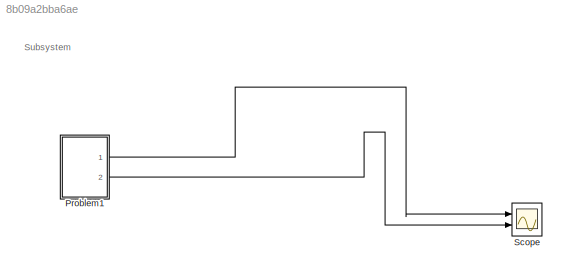
MODEL slx_8b09a2bba6ae
KIND model
CONFIG AbsTol = auto
CONFIG EnableMultiTasking = off
CONFIG FixedStep = auto
CONFIG MaxStep = auto
CONFIG MinStep = auto
CONFIG RelTol = 1e-3
CONFIG SampleTimeConstraint = Unconstrained
CONFIG Solver = VariableStepAuto
CONFIG SolverName = VariableStepAuto
CONFIG StartTime = 0.0
CONFIG StopTime = 100
WORKSPACE source: mxarray member
WORKSPACE F = 1
WORKSPACE b = 50
WORKSPACE k = 100
WORKSPACE k1 = 4
WORKSPACE k12 = 25
WORKSPACE m1 = 100
WORKSPACE m2 = 0.25
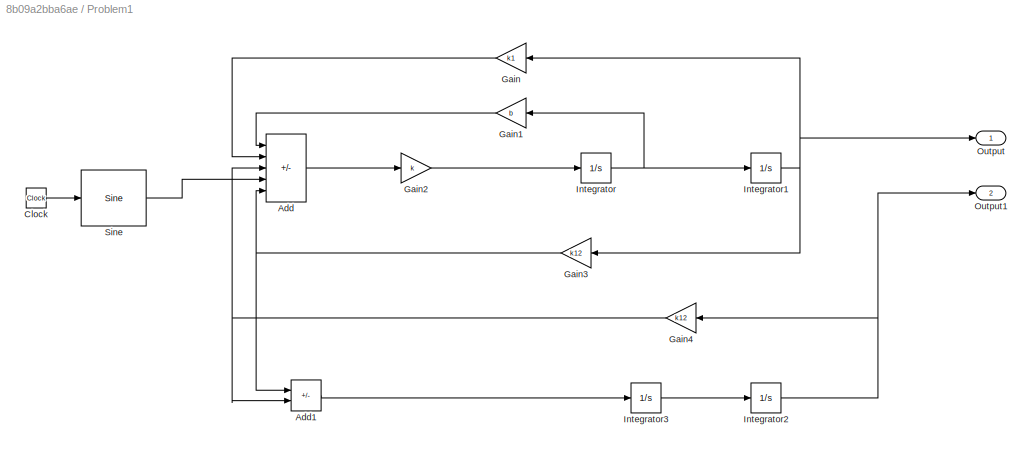
BLOCK [SubSystem] Problem1
  Ports = [0, 2]
  RequestExecContextInheritance = off
BLOCK [Sum] Problem1/Add
  IconShape = rectangular
  Inputs = --++-
  Ports = [5, 1]
BLOCK [Sum] Problem1/Add1
  IconShape = rectangular
  Inputs = +-
  Ports = [2, 1]
BLOCK [Clock] Problem1/Clock
BLOCK [Gain] Problem1/Gain
  Gain = k1
  NameLocation = top
BLOCK [Gain] Problem1/Gain1
  Gain = b
  NameLocation = top
BLOCK [Gain] Problem1/Gain2
  Gain = k
BLOCK [Gain] Problem1/Gain3
  Gain = k12
  NameLocation = top
BLOCK [Gain] Problem1/Gain4
  Gain = k12
  NameLocation = top
BLOCK [Integrator] Problem1/Integrator
  Ports = [1, 1]
BLOCK [Integrator] Problem1/Integrator1
  Ports = [1, 1]
BLOCK [Integrator] Problem1/Integrator2
  Ports = [1, 1]
BLOCK [Integrator] Problem1/Integrator3
  Ports = [1, 1]
BLOCK [Outport] Problem1/Output
BLOCK [Outport] Problem1/Output1
  Port = 2
BLOCK [Reference] Problem1/Sine  REF=simulink/Lookup
Tables/Sine
  Ports = [1, 1]
  SourceBlock = simulink/Lookup\nTables/Sine
  SourceProductBaseCode = SL
  SourceType = Sine and Cosine
BLOCK [Scope] Scope
  Floating = off
  NumInputPorts = 2
  Ports = [2]
  ScopeSpecificationString = Simulink.scopes.TimeScopeBlockCfg('CurrentConfiguration', extmgr.ConfigurationSet(extmgr.Configuration('Core','General UI',true),extmgr.Configuration('Core','Source UI',true),extmgr.Configuration('Sources','WiredSimulink',true),extmgr.Configuration('Visuals','Time Domain',true,'SerializedDisplays',{struct('MinYLimReal','-0.01203','MaxYLimReal','0.01301','YLabelReal','','MinYLimMag','0.00000','MaxY...<+1374ch>
ANNOTATION (root): Subsystem
LINE Problem1/Add1:1 -> Problem1/Integrator3:1
LINE Problem1/Add:1 -> Problem1/Gain2:1
LINE Problem1/Clock:1 -> Problem1/Sine:1
LINE Problem1/Gain1:1 -> Problem1/Add:1
LINE Problem1/Gain2:1 -> Problem1/Integrator:1
NET Problem1/Gain3:1 -> Problem1/Add1:1, Problem1/Add:5
NET Problem1/Gain4:1 -> Problem1/Add1:2, Problem1/Add:3
LINE Problem1/Gain:1 -> Problem1/Add:2
NET Problem1/Integrator1:1 -> Problem1/Gain3:1, Problem1/Gain:1, Problem1/Output:1
NET Problem1/Integrator2:1 -> Problem1/Gain4:1, Problem1/Output1:1
LINE Problem1/Integrator3:1 -> Problem1/Integrator2:1
NET Problem1/Integrator:1 -> Problem1/Gain1:1, Problem1/Integrator1:1
LINE Problem1/Sine:1 -> Problem1/Add:4
LINE Problem1:1 -> Scope:1
LINE Problem1:2 -> Scope:2
note: NET lines group one-source signal fan-out (src -> all destinations, sorted); 1:1 wires keep LINE
